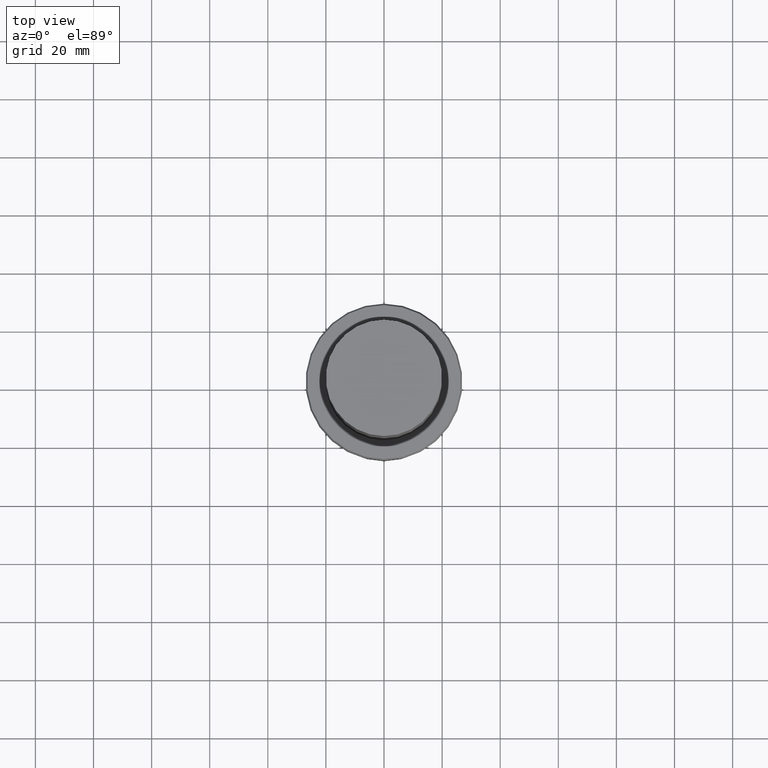
[diagram: clean part render]
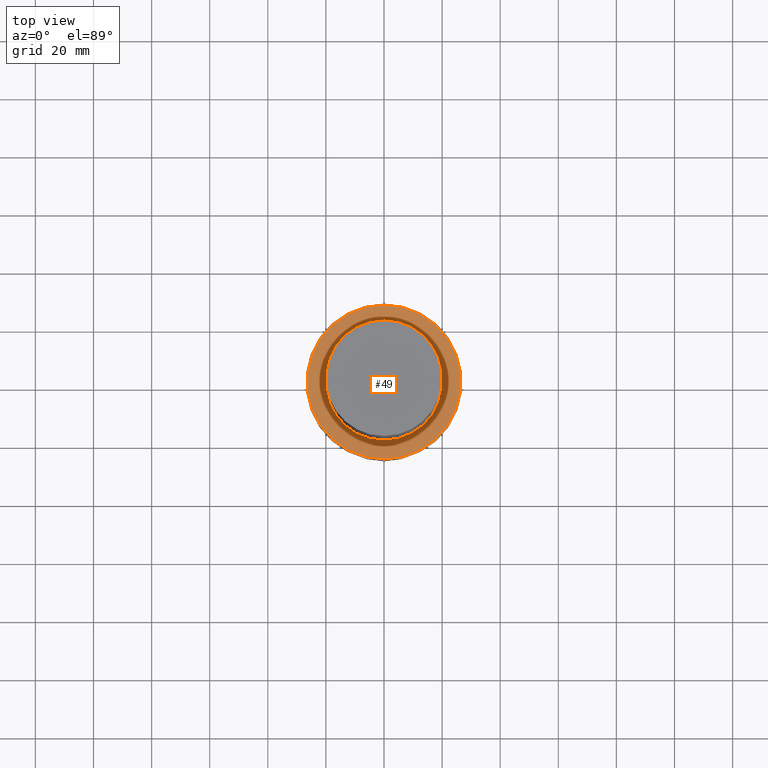
[diagram: same view with one face highlighted and labeled with its STEP entity id]
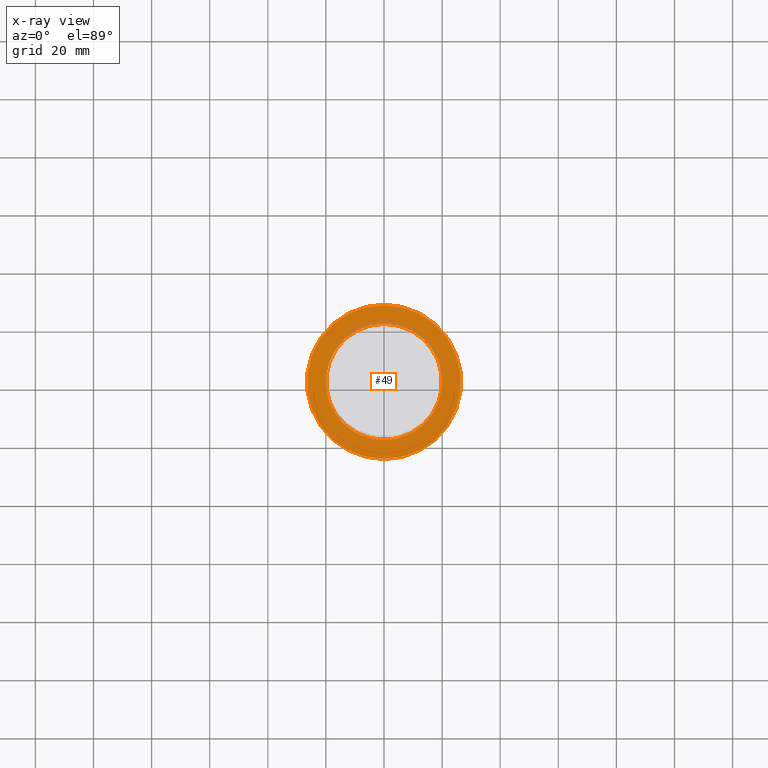
[diagram: x-ray of the same camera — body ghosted, the highlighted face saturated]
A machine part, top view. The second image highlights one B-rep face of the part: STEP entity #49.
The next image is the same camera in x-ray: the body ghosted, the highlighted face saturated — about 6% of this face is hidden behind the body in this view.
In plain terms, the highlighted planar face has unit normal (0, 0, 1).
Its self-contained STEP definition (entity closure, byte-faithful):
#49=ADVANCED_FACE('240[2]',(#111,#112),#113,.T.);
#64=EDGE_CURVE('240[2]',#135,#135,#136,.T.);
#73=EDGE_CURVE('240[2]',#147,#147,#148,.T.);
#111=FACE_OUTER_BOUND('',#183,.T.);
#112=FACE_BOUND('',#184,.T.);
#113=PLANE('',#185);
#135=VERTEX_POINT('',#213);
#136=CIRCLE('',#214,26.4999999999677);
#147=VERTEX_POINT('',#228);
#148=CIRCLE('',#229,19.999999999975);
#183=EDGE_LOOP('',(#258));
#184=EDGE_LOOP('',(#259));
#185=AXIS2_PLACEMENT_3D('',#260,#261,#262);
#213=CARTESIAN_POINT('',(-9.73594205322181E-015,26.4999999999677,159.000000000006));
#214=AXIS2_PLACEMENT_3D('',#286,#287,#288);
#228=CARTESIAN_POINT('',(-1.0287033112838E-014,19.999999999975,159.000000000006));
#229=AXIS2_PLACEMENT_3D('',#296,#297,#298);
#258=ORIENTED_EDGE('',*,*,#64,.F.);
#259=ORIENTED_EDGE('',*,*,#73,.T.);
#260=CARTESIAN_POINT('',(-19.6836970095136,3.54289035064121,159.000000000006));
#261=DIRECTION('',(0.0,0.0,1.0));
#262=DIRECTION('',(1.0,0.0,0.0));
#286=CARTESIAN_POINT('',(-9.73594205322181E-015,-1.94718841064436E-014,159.000000000006));
#287=DIRECTION('',(6.12323399573677E-017,1.22464679914735E-016,-1.0));
#288=DIRECTION('',(-1.23259516440783E-032,1.0,1.22464679914735E-016));
#296=CARTESIAN_POINT('',(-1.0287033112838E-014,-2.0574066225676E-014,159.000000000006));
#297=DIRECTION('',(6.12323399573677E-017,1.22464679914735E-016,-1.0));
#298=DIRECTION('',(-1.23259516440783E-032,1.0,1.22464679914735E-016));